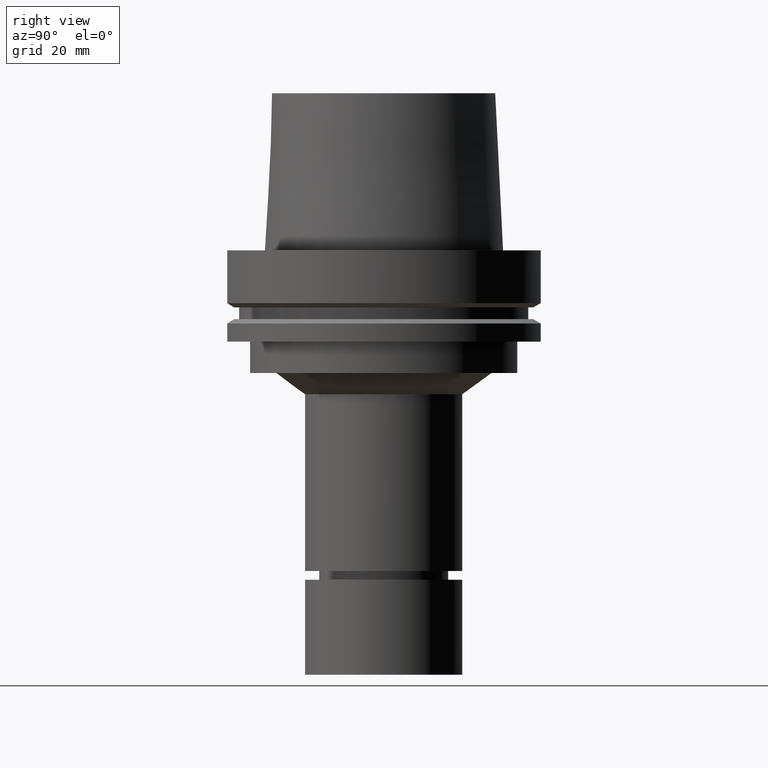
[diagram: clean part render]
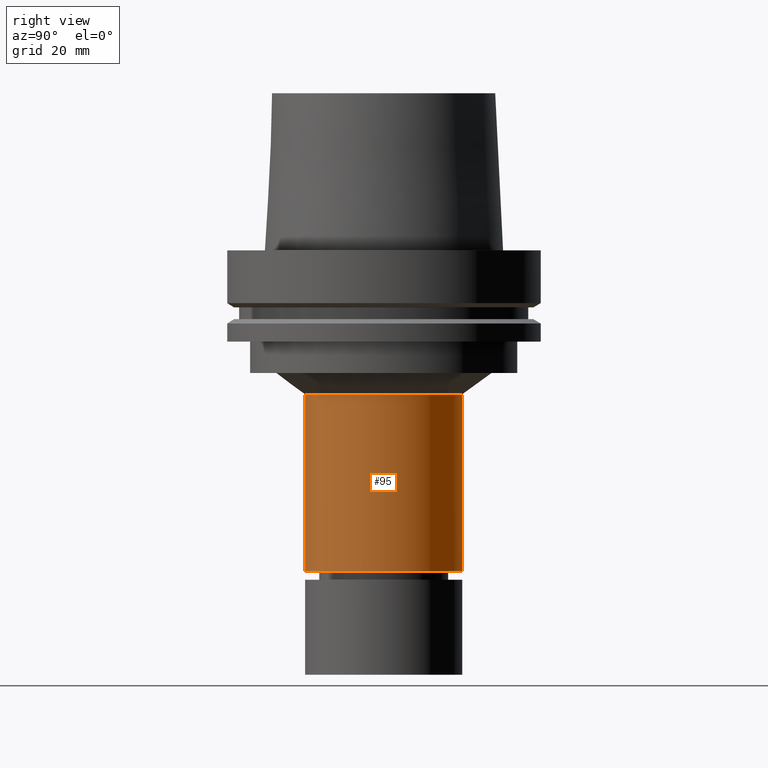
[diagram: same view with one face highlighted and labeled with its STEP entity id]
A machine part, right view. The second image highlights one B-rep face of the part: STEP entity #95.
In plain terms, the highlighted cylindrical surface (bore or boss wall) has radius 25 mm, axis along (0, 0, -1).
Its self-contained STEP definition (entity closure, byte-faithful):
#89=EDGE_CURVE('Unnamed[1]',#234,#234,#235,.T.);
#95=ADVANCED_FACE('Unnamed[1]',(#242,#243),#244,.T.);
#116=EDGE_CURVE('Unnamed[1]',#274,#274,#275,.T.);
#234=VERTEX_POINT('',#437);
#235=CIRCLE('',#438,25.0);
#242=FACE_BOUND('',#447,.T.);
#243=FACE_BOUND('',#448,.T.);
#244=CYLINDRICAL_SURFACE('',#449,25.0);
#274=VERTEX_POINT('',#487);
#275=CIRCLE('',#488,25.0);
#437=CARTESIAN_POINT('',(6.2457083239948E-015,25.0,-102.000157569404));
#438=AXIS2_PLACEMENT_3D('',#669,#670,#671);
#447=EDGE_LOOP('',(#678));
#448=EDGE_LOOP('',(#679));
#449=AXIS2_PLACEMENT_3D('',#680,#681,#682);
#487=CARTESIAN_POINT('',(2.80227603553221E-015,25.0,-45.76464067));
#488=AXIS2_PLACEMENT_3D('',#711,#712,#713);
#669=CARTESIAN_POINT('',(6.2457083239948E-015,1.24914166479896E-014,-102.000157569404));
#670=DIRECTION('',(6.12323399573677E-017,1.22464679914672E-016,-1.0));
#671=DIRECTION('',(-1.23259516440783E-032,1.0,1.22464679914672E-016));
#678=ORIENTED_EDGE('',*,*,#89,.F.);
#679=ORIENTED_EDGE('',*,*,#116,.T.);
#680=CARTESIAN_POINT('',(4.5239921797635E-015,9.04798435952701E-015,-73.8823991197018));
#681=DIRECTION('',(6.12323399573677E-017,1.22464679914672E-016,-1.0));
#682=DIRECTION('',(-1.23259516440783E-032,1.0,1.22464679914672E-016));
#711=CARTESIAN_POINT('',(2.80227603553221E-015,5.60455207106443E-015,-45.76464067));
#712=DIRECTION('',(6.12323399573677E-017,1.22464679914672E-016,-1.0));
#713=DIRECTION('',(-1.23259516440783E-032,1.0,1.22464679914672E-016));